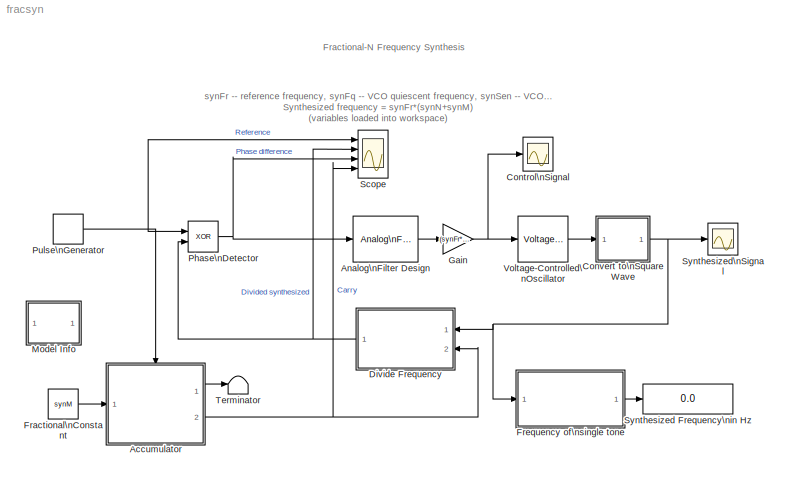
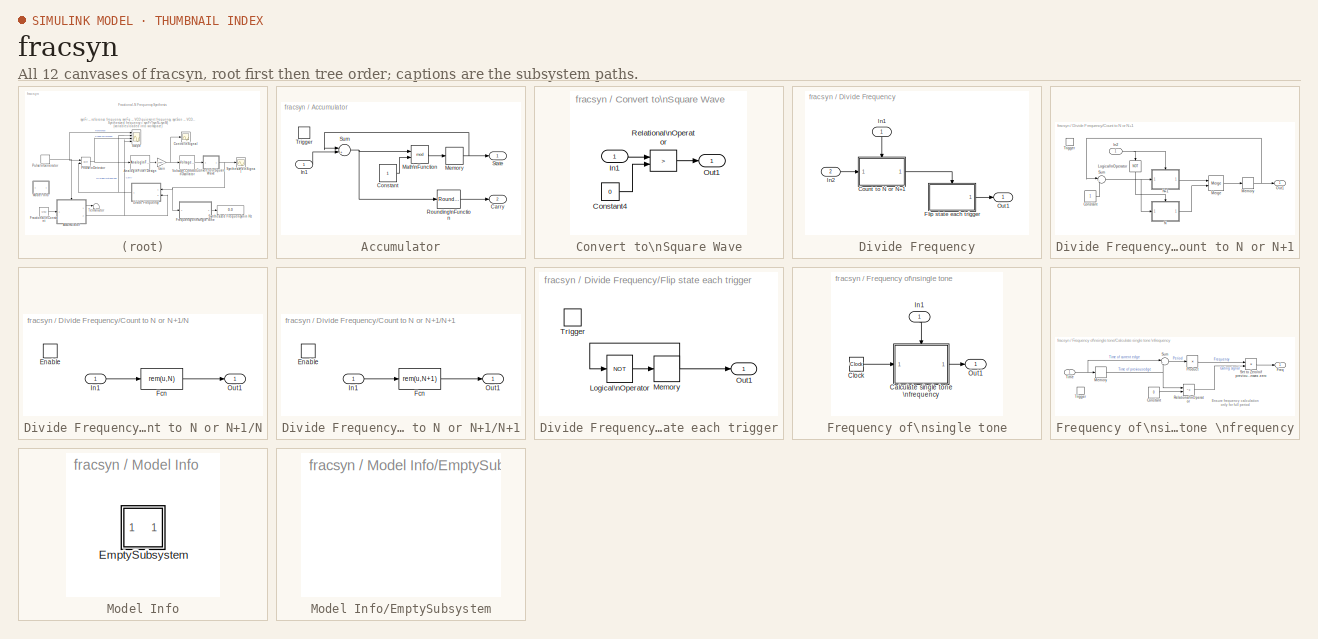
[diagram: thumbnail index - all 12 canvases of the model, root first then tree order]
MODEL fracsyn
KIND model
CONFIG PreLoadFcn = synM=.3;    % Fractional factor\nsynN=10;    % Fractional factor\nsynFr=1e7;   % Reference frequency\nsynFq=9e7;   % VCO quiescent frequency\nsynSen=1e7;   % VCO sensitivity
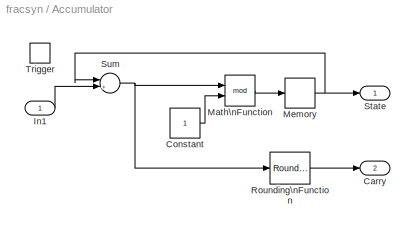
BLOCK [SubSystem] Accumulator
  EnableExecutionContextPropagation = on
  MinAlgLoopOccurrences = off
  Ports = [1, 2, 0, 1]
  TreatAsAtomicUnit = on
BLOCK [Outport] Accumulator/Carry
  BusOutputAsStruct = off
  IconDisplay = Port number
  Port = 2
BLOCK [Constant] Accumulator/Constant
BLOCK [Inport] Accumulator/In1
  IconDisplay = Port number
  LatchInput = off
BLOCK [Math] Accumulator/Math\nFunction
  Operator = mod
  Ports = [2, 1]
BLOCK [Memory] Accumulator/Memory
  InheritSampleTime = on
BLOCK [Rounding] Accumulator/Rounding\nFunction
BLOCK [Outport] Accumulator/State
  BusOutputAsStruct = off
  IconDisplay = Port number
BLOCK [Sum] Accumulator/Sum
  IconShape = round
  Inputs = |++
  Ports = [2, 1]
BLOCK [TriggerPort] Accumulator/Trigger
  Ports = []
  ZeroCross = off
BLOCK [Reference] Analog\nFilter Design  REF=dspddes2/Analog\nFilter Design
  N = 1
  Ports = [1, 1]
  Rp = 2
  Rs = 40
  ShowPortLabels = on
  SourceBlock = dspddes2/Analog\nFilter Design
  SourceType = Analog Filter Design
  Whi = 80
  Wlo = synFr/15
  filttype = Lowpass
  method = Butterworth
BLOCK [Scope] Control\nSignal
  DataFormat = StructureWithTime
  LimitDataPoints = off
  MaxDataPoints = 50000
  NumInputPorts = 1
  Ports = [1]
  SaveName = ScopeData1
  TimeRange = 5e-05
  YMax = 2
  YMin = 0
BLOCK [SubSystem] Convert to\nSquare Wave
  EnableExecutionContextPropagation = on
  MinAlgLoopOccurrences = off
  Ports = [1, 1]
  TreatAsAtomicUnit = off
BLOCK [Constant] Convert to\nSquare Wave/Constant4
  Value = 0
BLOCK [Inport] Convert to\nSquare Wave/In1
  IconDisplay = Port number
  LatchInput = off
BLOCK [Outport] Convert to\nSquare Wave/Out1
  BusOutputAsStruct = off
  IconDisplay = Port number
BLOCK [RelationalOperator] Convert to\nSquare Wave/Relational\nOperator
  Operator = >
BLOCK [SubSystem] Divide Frequency
  EnableExecutionContextPropagation = on
  MaskDescription = Divide input frequency by N or N+1 depending on the control port.
  MaskDisplay = disp(['Divide Frequency\\nby N or N+1']);
  MaskEnableString = on
  MaskIconFrame = on
  MaskIconOpaque = on
  MaskIconRotate = none
  MaskIconUnits = autoscale
  MaskPromptString = N:
  MaskStyleString = edit
  MaskToolTipString = on
  MaskTunableValueString = on
  MaskType = Divide frequency by N or N+1
  MaskValueString = synN
  MaskVariables = N=@1;
  MaskVisibilityString = on
  MinAlgLoopOccurrences = off
  Ports = [2, 1]
  TreatAsAtomicUnit = off
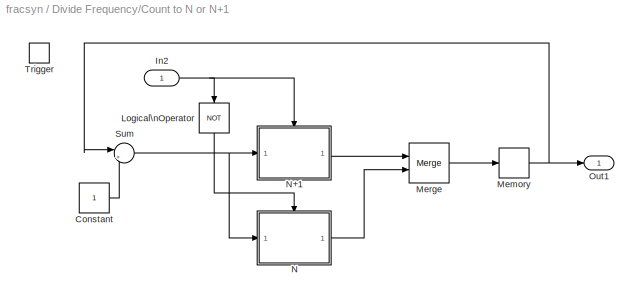
BLOCK [SubSystem] Divide Frequency/Count to N or N+1
  EnableExecutionContextPropagation = on
  MinAlgLoopOccurrences = off
  Ports = [1, 1, 0, 1]
  TreatAsAtomicUnit = on
BLOCK [Constant] Divide Frequency/Count to N or N+1/Constant
BLOCK [Inport] Divide Frequency/Count to N or N+1/In2
  IconDisplay = Port number
  LatchInput = off
BLOCK [Logic] Divide Frequency/Count to N or N+1/Logical\nOperator
  Operator = NOT
  Ports = [1, 1]
BLOCK [Memory] Divide Frequency/Count to N or N+1/Memory
  InheritSampleTime = on
  X0 = 1
BLOCK [Merge] Divide Frequency/Count to N or N+1/Merge
  Ports = [2, 1]
BLOCK [SubSystem] Divide Frequency/Count to N or N+1/N
  EnableExecutionContextPropagation = on
  MinAlgLoopOccurrences = off
  Ports = [1, 1, 1]
  TreatAsAtomicUnit = on
BLOCK [SubSystem] Divide Frequency/Count to N or N+1/N+1
  EnableExecutionContextPropagation = on
  MinAlgLoopOccurrences = off
  Ports = [1, 1, 1]
  TreatAsAtomicUnit = on
BLOCK [EnablePort] Divide Frequency/Count to N or N+1/N+1/Enable
  Ports = []
  ZeroCross = off
BLOCK [Fcn] Divide Frequency/Count to N or N+1/N+1/Fcn
  Expr = rem(u,N+1)
BLOCK [Inport] Divide Frequency/Count to N or N+1/N+1/In1
  IconDisplay = Port number
  LatchInput = off
BLOCK [Outport] Divide Frequency/Count to N or N+1/N+1/Out1
  BusOutputAsStruct = off
  IconDisplay = Port number
BLOCK [EnablePort] Divide Frequency/Count to N or N+1/N/Enable
  Ports = []
  ZeroCross = off
BLOCK [Fcn] Divide Frequency/Count to N or N+1/N/Fcn
  Expr = rem(u,N)
BLOCK [Inport] Divide Frequency/Count to N or N+1/N/In1
  IconDisplay = Port number
  LatchInput = off
BLOCK [Outport] Divide Frequency/Count to N or N+1/N/Out1
  BusOutputAsStruct = off
  IconDisplay = Port number
BLOCK [Outport] Divide Frequency/Count to N or N+1/Out1
  BusOutputAsStruct = off
  IconDisplay = Port number
BLOCK [Sum] Divide Frequency/Count to N or N+1/Sum
  IconShape = round
  Inputs = |++
  Ports = [2, 1]
BLOCK [TriggerPort] Divide Frequency/Count to N or N+1/Trigger
  Ports = []
  TriggerType = either
  ZeroCross = off
BLOCK [SubSystem] Divide Frequency/Flip state each trigger
  EnableExecutionContextPropagation = on
  MinAlgLoopOccurrences = off
  Ports = [0, 1, 0, 1]
  TreatAsAtomicUnit = on
BLOCK [Logic] Divide Frequency/Flip state each trigger/Logical\nOperator
  Operator = NOT
  Ports = [1, 1]
BLOCK [Memory] Divide Frequency/Flip state each trigger/Memory
  InheritSampleTime = on
  X0 = 1
BLOCK [Outport] Divide Frequency/Flip state each trigger/Out1
  BusOutputAsStruct = off
  IconDisplay = Port number
  InitialOutput = 0
BLOCK [TriggerPort] Divide Frequency/Flip state each trigger/Trigger
  Ports = []
  TriggerType = falling
  ZeroCross = off
BLOCK [Inport] Divide Frequency/In1
  IconDisplay = Port number
  LatchInput = off
BLOCK [Inport] Divide Frequency/In2
  IconDisplay = Port number
  LatchInput = off
  Port = 2
BLOCK [Outport] Divide Frequency/Out1
  BusOutputAsStruct = off
  IconDisplay = Port number
BLOCK [Constant] Fractional\nConstant
  Value = synM
BLOCK [SubSystem] Frequency of\nsingle tone
  EnableExecutionContextPropagation = on
  MaskDisplay = disp('Single Tone\\nFrequency Estimator');
  MaskIconFrame = on
  MaskIconOpaque = on
  MaskIconRotate = none
  MaskIconUnits = autoscale
  MinAlgLoopOccurrences = off
  Ports = [1, 1]
  TreatAsAtomicUnit = off
BLOCK [SubSystem] Frequency of\nsingle tone/Calculate single tone \nfrequency
  EnableExecutionContextPropagation = on
  MinAlgLoopOccurrences = off
  Ports = [1, 1, 0, 1]
  TreatAsAtomicUnit = on
BLOCK [Constant] Frequency of\nsingle tone/Calculate single tone \nfrequency/Constant
  Value = 0
BLOCK [Outport] Frequency of\nsingle tone/Calculate single tone \nfrequency/Freq
  BusOutputAsStruct = off
  IconDisplay = Port number
  InitialOutput = 0
BLOCK [Memory] Frequency of\nsingle tone/Calculate single tone \nfrequency/Memory
  InheritSampleTime = on
BLOCK [Product] Frequency of\nsingle tone/Calculate single tone \nfrequency/Product
  Inputs = /
  Ports = [1, 1]
  RndMeth = Floor
BLOCK [RelationalOperator] Frequency of\nsingle tone/Calculate single tone \nfrequency/Relational\nOperator
  Operator = ~=
BLOCK [Product] Frequency of\nsingle tone/Calculate single tone \nfrequency/Set to Zero\nif previous time\nwas zero
  Ports = [2, 1]
  RndMeth = Floor
BLOCK [Sum] Frequency of\nsingle tone/Calculate single tone \nfrequency/Sum
  IconShape = round
  Inputs = |+-
  Ports = [2, 1]
BLOCK [Inport] Frequency of\nsingle tone/Calculate single tone \nfrequency/Time
  IconDisplay = Port number
  LatchInput = off
BLOCK [TriggerPort] Frequency of\nsingle tone/Calculate single tone \nfrequency/Trigger
  Ports = []
  ZeroCross = off
BLOCK [Clock] Frequency of\nsingle tone/Clock
  Decimation = 1
BLOCK [Inport] Frequency of\nsingle tone/In1
  IconDisplay = Port number
  LatchInput = off
BLOCK [Outport] Frequency of\nsingle tone/Out1
  BusOutputAsStruct = off
  IconDisplay = Port number
BLOCK [Gain] Gain
  Gain = (synFr*synN-synFq)*3/synSen
BLOCK [SubSystem] Model Info
  CopyFcn = slcm CopyBlock;
  DeleteFcn = slcm Cancel;
  EnableExecutionContextPropagation = on
  InitFcn = slcm('UpdateAllCMBlocksInThisModelInit')
  LoadFcn = slcm LoadBlock;
  MaskCallbackString = ||||||||||||||||||||||||||||||
  MaskDescription = This block allows revision control information to be displayed within the model.
  MaskDisplay = text(str2num(LeftAlignmentValue), 0.5, MaskDisplayString, 'HorizontalAlignment', HorizontalTextAlignment)\n
  MaskEnableString = on,on,on,on,on,on,on,on,on,on,on,on,on,on,on,on,on,on,on,on,on,on,on,on,on,on,on,on,on,on,on
  MaskIconFrame = on
  MaskIconOpaque = on
  MaskIconRotate = none
  MaskIconUnits = normalized
  MaskPromptString = InitialSaveTempField|InitialBlockCM|BlockCM|Frame|SaveTempField|DisplayStringWithTags|MaskDisplayString|HorizontalTextAlignment|LeftAlignmentValue|SourceBlockDiagram|TagMaxNumber|CMTag1|CMTag2|CMTag3|CMTag4|CMTag5|CMTag6|CMTag7|CMTag8|CMTag9|CMTag10|CMTag11|CMTag12|CMTag13|CMTag14|CMTag15|CMTag16|CMTag17|CMTag18|CMTag19|CMTag20
  MaskSelfModifiable = on
  MaskStyleString = edit,edit,edit,edit,edit,edit,edit,edit,edit,edit,edit,edit,edit,edit,edit,edit,edit,edit,edit,edit,edit,edit,edit,edit,edit,edit,edit,edit,edit,edit,edit
  MaskTabNameString = ,,,,,,,,,,,,,,,,,,,,,,,,,,,,,,
  MaskToolTipString = on,on,on,on,on,on,on,on,on,on,on,on,on,on,on,on,on,on,on,on,on,on,on,on,on,on,on,on,on,on,on
  MaskTunableValueString = on,on,on,on,on,on,on,on,on,on,on,on,on,on,on,on,on,on,on,on,on,on,on,on,on,on,on,on,on,on,on
  MaskType = CMBlock
  MaskValueString = |none|none|on||Info|Info|Center|0.5|fracsyn|20||||||||||||||||||||
  MaskVarAliasString = ,,,,,,,,,,,,,,,,,,,,,,,,,,,,,,
  MaskVariables = InitialSaveTempField=&1;InitialBlockCM=&2;BlockCM=&3;Frame=&4;SaveTempField=&5;DisplayStringWithTags=&6;MaskDisplayString=&7;HorizontalTextAlignment=&8;LeftAlignmentValue=&9;SourceBlockDiagram=&10;TagMaxNumber=@11;CMTag1=&12;CMTag2=&13;CMTag3=&14;CMTag4=&15;CMTag5=&16;CMTag6=&17;CMTag7=&18;CMTag8=&19;CMTag9=&20;CMTag10=&21;CMTag11=&22;CMTag12=&23;CMTag13=&24;CMTag14=&25;CMTag15=&26;CMTag16=&27;CMT...<+45ch>
  MaskVisibilityString = off,off,off,off,off,off,off,off,off,off,off,off,off,off,off,off,off,off,off,off,off,off,off,off,off,off,off,off,off,off,off
  MinAlgLoopOccurrences = off
  NameChangeFcn = slcm Rename;
  OpenFcn = commdemohelp;
  Ports = []
  PostSaveFcn = slcm('UpdateAllCMBlocksInThisModel')
  TreatAsAtomicUnit = off
BLOCK [SubSystem] Model Info/EmptySubsystem
  EnableExecutionContextPropagation = on
  MinAlgLoopOccurrences = off
  Ports = []
  TreatAsAtomicUnit = off
BLOCK [Logic] Phase\nDetector
  Operator = XOR
  Ports = [2, 1]
BLOCK [DiscretePulseGenerator] Pulse\nGenerator
  Period = 1/synFr
  Ports = [0, 1]
  PulseType = Time based
  PulseWidth = 50
BLOCK [Scope] Scope
  DataFormat = StructureWithTime
  NumInputPorts = 4
  Ports = [4]
  SaveName = ScopeData8
  TimeRange = 1e-006
  YMax = 1.5~1.5~1.5~1.5
  YMin = -0.5~-0.5~-0.5~-0.5
BLOCK [Display] Synthesized Frequency\nin Hz
  Decimation = 1
  Ports = [1]
BLOCK [Scope] Synthesized\nSignal
  DataFormat = StructureWithTime
  MaxDataPoints = 50000
  NumInputPorts = 1
  Ports = [1]
  SaveName = ScopeData2
  TimeRange = 4.854368932038835e-08
  YMax = 1.5
  YMin = -0.5
  ZoomMode = xonly
BLOCK [Terminator] Terminator
BLOCK [Reference] Voltage-Controlled\nOscillator  REF=commsynccomp2/Voltage-Controlled\nOscillator
  Ac = 1
  Fc = synFq
  Kc = synSen
  Ph = 0
  Ports = [1, 1]
  ShowPortLabels = on
  SourceBlock = commsynccomp2/Voltage-Controlled\nOscillator
  SourceType = Voltage-Controlled Oscillator
ANNOTATION (root): Fractional-N Frequency Synthesis
ANNOTATION (root): synFr -- reference frequency, synFq -- VCO quiescent frequency, synSen -- VCO sensitivity\nSynthesized frequency = synFr*(synN+synM)\n(variables loaded into workspace)
ANNOTATION Frequency of\nsingle tone/Calculate single tone \nfrequency: Ensure frequency calculation\nonly for full period
LINE Accumulator/Constant:1 -> Accumulator/Math\nFunction:2
LINE Accumulator/In1:1 -> Accumulator/Sum:2
LINE Accumulator/Math\nFunction:1 -> Accumulator/Memory:1
NET Accumulator/Memory:1 -> Accumulator/State:1, Accumulator/Sum:1
LINE Accumulator/Rounding\nFunction:1 -> Accumulator/Carry:1
NET Accumulator/Sum:1 -> Accumulator/Math\nFunction:1, Accumulator/Rounding\nFunction:1
LINE Accumulator:1 -> Terminator:1
NET Accumulator:2 -> Divide Frequency:2, Scope:4
LINE Analog\nFilter Design:1 -> Gain:1
LINE Convert to\nSquare Wave/Constant4:1 -> Convert to\nSquare Wave/Relational\nOperator:2
LINE Convert to\nSquare Wave/In1:1 -> Convert to\nSquare Wave/Relational\nOperator:1
LINE Convert to\nSquare Wave/Relational\nOperator:1 -> Convert to\nSquare Wave/Out1:1
NET Convert to\nSquare Wave:1 -> Divide Frequency:1, Frequency of\nsingle tone:1, Synthesized\nSignal:1
LINE Divide Frequency/Count to N or N+1/Constant:1 -> Divide Frequency/Count to N or N+1/Sum:2
NET Divide Frequency/Count to N or N+1/In2:1 -> Divide Frequency/Count to N or N+1/Logical\nOperator:1, Divide Frequency/Count to N or N+1/N+1:enable
LINE Divide Frequency/Count to N or N+1/Logical\nOperator:1 -> Divide Frequency/Count to N or N+1/N:enable
NET Divide Frequency/Count to N or N+1/Memory:1 -> Divide Frequency/Count to N or N+1/Out1:1, Divide Frequency/Count to N or N+1/Sum:1
LINE Divide Frequency/Count to N or N+1/Merge:1 -> Divide Frequency/Count to N or N+1/Memory:1
LINE Divide Frequency/Count to N or N+1/N+1/Fcn:1 -> Divide Frequency/Count to N or N+1/N+1/Out1:1
LINE Divide Frequency/Count to N or N+1/N+1/In1:1 -> Divide Frequency/Count to N or N+1/N+1/Fcn:1
LINE Divide Frequency/Count to N or N+1/N+1:1 -> Divide Frequency/Count to N or N+1/Merge:1
LINE Divide Frequency/Count to N or N+1/N/Fcn:1 -> Divide Frequency/Count to N or N+1/N/Out1:1
LINE Divide Frequency/Count to N or N+1/N/In1:1 -> Divide Frequency/Count to N or N+1/N/Fcn:1
LINE Divide Frequency/Count to N or N+1/N:1 -> Divide Frequency/Count to N or N+1/Merge:2
NET Divide Frequency/Count to N or N+1/Sum:1 -> Divide Frequency/Count to N or N+1/N+1:1, Divide Frequency/Count to N or N+1/N:1
LINE Divide Frequency/Count to N or N+1:1 -> Divide Frequency/Flip state each trigger:trigger
LINE Divide Frequency/Flip state each trigger/Logical\nOperator:1 -> Divide Frequency/Flip state each trigger/Memory:1
NET Divide Frequency/Flip state each trigger/Memory:1 -> Divide Frequency/Flip state each trigger/Logical\nOperator:1, Divide Frequency/Flip state each trigger/Out1:1
LINE Divide Frequency/Flip state each trigger:1 -> Divide Frequency/Out1:1
LINE Divide Frequency/In1:1 -> Divide Frequency/Count to N or N+1:trigger
LINE Divide Frequency/In2:1 -> Divide Frequency/Count to N or N+1:1
NET Divide Frequency:1 -> Phase\nDetector:2, Scope:2
LINE Fractional\nConstant:1 -> Accumulator:1
LINE Frequency of\nsingle tone/Calculate single tone \nfrequency/Constant:1 -> Frequency of\nsingle tone/Calculate single tone \nfrequency/Relational\nOperator:2
NET Frequency of\nsingle tone/Calculate single tone \nfrequency/Memory:1 -> Frequency of\nsingle tone/Calculate single tone \nfrequency/Relational\nOperator:1, Frequency of\nsingle tone/Calculate single tone \nfrequency/Sum:2
LINE Frequency of\nsingle tone/Calculate single tone \nfrequency/Product:1 -> Frequency of\nsingle tone/Calculate single tone \nfrequency/Set to Zero\nif previous time\nwas zero:1
LINE Frequency of\nsingle tone/Calculate single tone \nfrequency/Relational\nOperator:1 -> Frequency of\nsingle tone/Calculate single tone \nfrequency/Set to Zero\nif previous time\nwas zero:2
LINE Frequency of\nsingle tone/Calculate single tone \nfrequency/Set to Zero\nif previous time\nwas zero:1 -> Frequency of\nsingle tone/Calculate single tone \nfrequency/Freq:1
LINE Frequency of\nsingle tone/Calculate single tone \nfrequency/Sum:1 -> Frequency of\nsingle tone/Calculate single tone \nfrequency/Product:1
NET Frequency of\nsingle tone/Calculate single tone \nfrequency/Time:1 -> Frequency of\nsingle tone/Calculate single tone \nfrequency/Memory:1, Frequency of\nsingle tone/Calculate single tone \nfrequency/Sum:1
LINE Frequency of\nsingle tone/Calculate single tone \nfrequency:1 -> Frequency of\nsingle tone/Out1:1
LINE Frequency of\nsingle tone/Clock:1 -> Frequency of\nsingle tone/Calculate single tone \nfrequency:1
LINE Frequency of\nsingle tone/In1:1 -> Frequency of\nsingle tone/Calculate single tone \nfrequency:trigger
LINE Frequency of\nsingle tone:1 -> Synthesized Frequency\nin Hz:1
NET Gain:1 -> Control\nSignal:1, Voltage-Controlled\nOscillator:1
NET Phase\nDetector:1 -> Analog\nFilter Design:1, Scope:3
NET Pulse\nGenerator:1 -> Accumulator:trigger, Phase\nDetector:1, Scope:1
LINE Voltage-Controlled\nOscillator:1 -> Convert to\nSquare Wave:1
note: NET lines group one-source signal fan-out (src -> all destinations, sorted); 1:1 wires keep LINE
